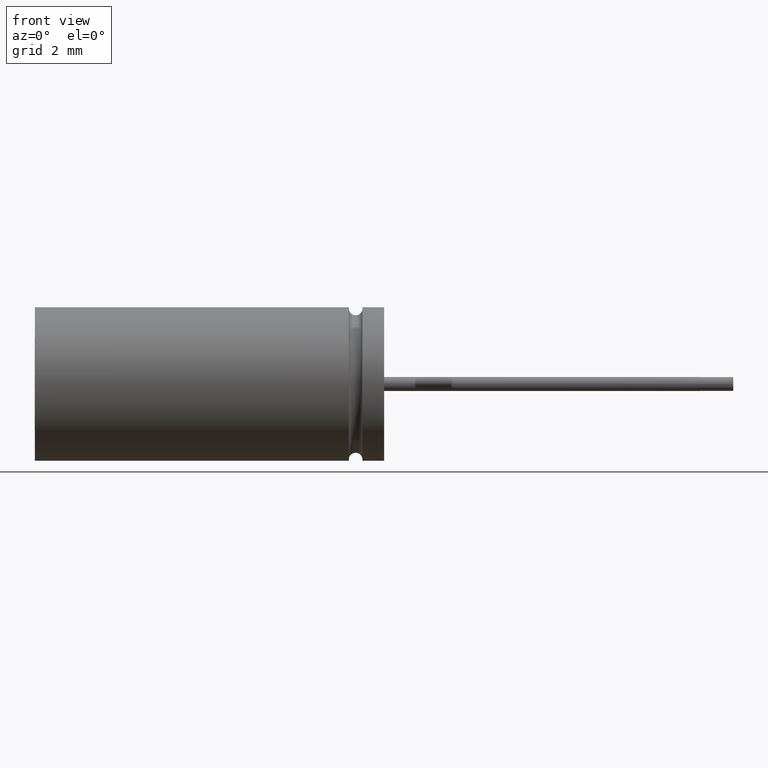
[diagram: clean part render]
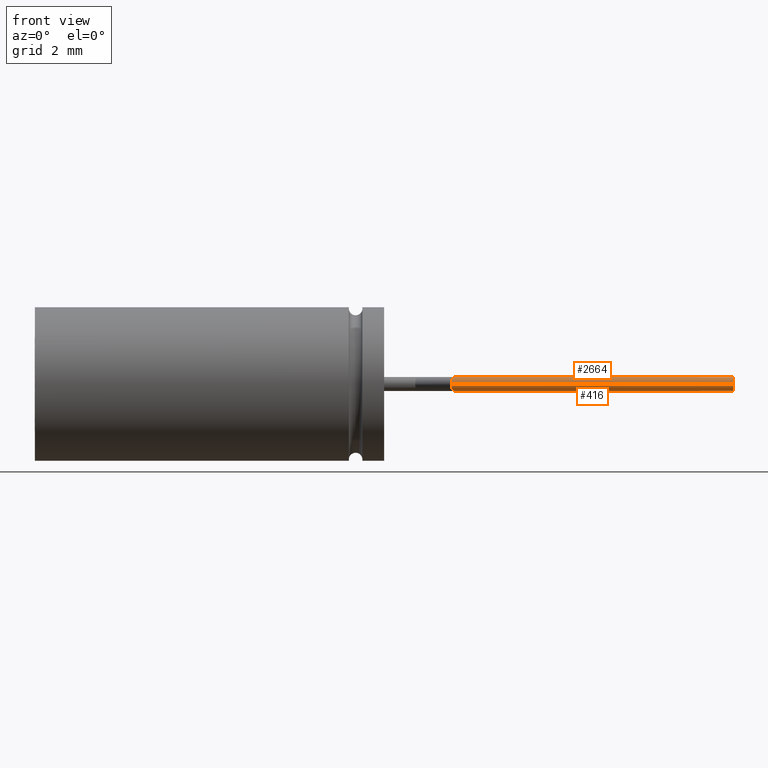
[diagram: same view with one multi-face feature highlighted, each face labeled with its STEP entity id]
A machine part, front view. The highlighted faces form ONE feature: a constant-radius fillet chain: 2 tangent blend faces with common blend radius 0.25 mm. The faces share edges in the B-rep.
Their STEP definitions:
[1] entity #2664 (Cylinder):
#14 = DIRECTION ( 'NONE',  ( 1.000000000000000000, -8.673617379884037900E-017, 0.0000000000000000000 ) ) ;
#53 = EDGE_CURVE ( 'NONE', #1731, #1113, #384, .T. ) ;
#79 = ORIENTED_EDGE ( 'NONE', *, *, #53, .T. ) ;
#138 = DIRECTION ( 'NONE',  ( -1.000000000000000000, 8.673617379884035500E-017, -0.0000000000000000000 ) ) ;
#184 = ORIENTED_EDGE ( 'NONE', *, *, #2711, .T. ) ;
#384 = LINE ( 'NONE', #2011, #1017 ) ;
#428 = DIRECTION ( 'NONE',  ( 1.000000000000000000, -8.673617379884037900E-017, 0.0000000000000000000 ) ) ;
#483 = DIRECTION ( 'NONE',  ( 0.0000000000000000000, 1.000000000000000000, 0.0000000000000000000 ) ) ;
#584 = CIRCLE ( 'NONE', #973, 0.2500000000000002200 ) ;
#749 = CARTESIAN_POINT ( 'NONE',  ( 25.00000000000000000, -2.750000000000000900, 3.061616997868385500E-017 ) ) ;
#782 = CARTESIAN_POINT ( 'NONE',  ( 14.91496951332858200, -2.750000000000000000, 3.061616997868382400E-017 ) ) ;
#838 = CARTESIAN_POINT ( 'NONE',  ( 15.08503048667141900, -2.249999999999999600, 0.0000000000000000000 ) ) ;
#855 = CARTESIAN_POINT ( 'NONE',  ( 25.00000000000000000, -2.250000000000000400, 0.0000000000000000000 ) ) ;
#868 = EDGE_LOOP ( 'NONE', ( #184, #79, #1421, #3682 ) ) ;
#881 = EDGE_CURVE ( 'NONE', #2224, #3134, #1490, .T. ) ;
#973 = AXIS2_PLACEMENT_3D ( 'NONE', #2074, #138, #2116 ) ;
#1017 = VECTOR ( 'NONE', #2894, 1000.000000000000000 ) ;
#1113 = VERTEX_POINT ( 'NONE', #749 ) ;
#1421 = ORIENTED_EDGE ( 'NONE', *, *, #2892, .T. ) ;
#1490 = LINE ( 'NONE', #3410, #3010 ) ;
#1629 = AXIS2_PLACEMENT_3D ( 'NONE', #2119, #428, #483 ) ;
#1731 = VERTEX_POINT ( 'NONE', #2309 ) ;
#2011 = CARTESIAN_POINT ( 'NONE',  ( 15.00000000000000200, -2.750000000000000000, 3.061616997868382400E-017 ) ) ;
#2074 = CARTESIAN_POINT ( 'NONE',  ( 25.00000000000000000, -2.500000000000000400, 0.0000000000000000000 ) ) ;
#2116 = DIRECTION ( 'NONE',  ( 0.0000000000000000000, 1.000000000000000000, 0.0000000000000000000 ) ) ;
#2119 = CARTESIAN_POINT ( 'NONE',  ( 15.00000000000000200, -2.499999999999999600, 0.0000000000000000000 ) ) ;
#2200 = CARTESIAN_POINT ( 'NONE',  ( 15.08503048667141900, -2.249999999999999600, 0.0000000000000000000 ) ) ;
#2224 = VERTEX_POINT ( 'NONE', #838 ) ;
#2309 = CARTESIAN_POINT ( 'NONE',  ( 14.91496951332858200, -2.750000000000000000, 3.061616997868382400E-017 ) ) ;
#2423 = FACE_OUTER_BOUND ( 'NONE', #868, .T. ) ;
#2498 = CARTESIAN_POINT ( 'NONE',  ( 15.08503048667142100, -2.249999999999999600, 0.5000000000000000000 ) ) ;
#2538 =( BOUNDED_CURVE ( )  B_SPLINE_CURVE ( 3, ( #2200, #2498, #3645, #782 ),
 .UNSPECIFIED., .F., .T. ) 
 B_SPLINE_CURVE_WITH_KNOTS ( ( 4, 4 ),
 ( 3.141592653589793100, 6.283185307179586200 ),
 .UNSPECIFIED. ) 
 CURVE ( )  GEOMETRIC_REPRESENTATION_ITEM ( )  RATIONAL_B_SPLINE_CURVE ( ( 1.000000000000000000, 0.3333333333333333700, 0.3333333333333333700, 1.000000000000000000 ) ) 
 REPRESENTATION_ITEM ( '' )  );
#2664 = ADVANCED_FACE ( 'NONE', ( #2423 ), #2792, .T. ) ;
#2711 = EDGE_CURVE ( 'NONE', #2224, #1731, #2538, .T. ) ;
#2792 = CYLINDRICAL_SURFACE ( 'NONE', #1629, 0.2500000000000002200 ) ;
#2892 = EDGE_CURVE ( 'NONE', #1113, #3134, #584, .T. ) ;
#2894 = DIRECTION ( 'NONE',  ( 1.000000000000000000, -8.673617379884037900E-017, 0.0000000000000000000 ) ) ;
#3010 = VECTOR ( 'NONE', #14, 1000.000000000000000 ) ;
#3134 = VERTEX_POINT ( 'NONE', #855 ) ;
#3410 = CARTESIAN_POINT ( 'NONE',  ( 15.00000000000000200, -2.249999999999999600, 0.0000000000000000000 ) ) ;
#3645 = CARTESIAN_POINT ( 'NONE',  ( 14.91496951332858200, -2.750000000000000000, 0.5000000000000000000 ) ) ;
#3682 = ORIENTED_EDGE ( 'NONE', *, *, #881, .F. ) ;
[2] entity #416 (Cylinder):
#14 = DIRECTION ( 'NONE',  ( 1.000000000000000000, -8.673617379884037900E-017, 0.0000000000000000000 ) ) ;
#53 = EDGE_CURVE ( 'NONE', #1731, #1113, #384, .T. ) ;
#384 = LINE ( 'NONE', #2011, #1017 ) ;
#391 = DIRECTION ( 'NONE',  ( 0.0000000000000000000, 1.000000000000000000, 0.0000000000000000000 ) ) ;
#416 = ADVANCED_FACE ( 'NONE', ( #1449 ), #2963, .T. ) ;
#496 = ORIENTED_EDGE ( 'NONE', *, *, #1668, .T. ) ;
#505 = AXIS2_PLACEMENT_3D ( 'NONE', #3271, #1574, #391 ) ;
#547 = AXIS2_PLACEMENT_3D ( 'NONE', #1038, #3129, #578 ) ;
#578 = DIRECTION ( 'NONE',  ( 0.0000000000000000000, 1.000000000000000000, 0.0000000000000000000 ) ) ;
#688 = CARTESIAN_POINT ( 'NONE',  ( 15.08503048667141900, -2.249999999999999600, 0.0000000000000000000 ) ) ;
#749 = CARTESIAN_POINT ( 'NONE',  ( 25.00000000000000000, -2.750000000000000900, 3.061616997868385500E-017 ) ) ;
#838 = CARTESIAN_POINT ( 'NONE',  ( 15.08503048667141900, -2.249999999999999600, 0.0000000000000000000 ) ) ;
#855 = CARTESIAN_POINT ( 'NONE',  ( 25.00000000000000000, -2.250000000000000400, 0.0000000000000000000 ) ) ;
#881 = EDGE_CURVE ( 'NONE', #2224, #3134, #1490, .T. ) ;
#1017 = VECTOR ( 'NONE', #2894, 1000.000000000000000 ) ;
#1038 = CARTESIAN_POINT ( 'NONE',  ( 25.00000000000000000, -2.500000000000000400, 0.0000000000000000000 ) ) ;
#1099 = EDGE_LOOP ( 'NONE', ( #3029, #1384, #1965, #496 ) ) ;
#1113 = VERTEX_POINT ( 'NONE', #749 ) ;
#1158 = CIRCLE ( 'NONE', #547, 0.2500000000000002200 ) ;
#1384 = ORIENTED_EDGE ( 'NONE', *, *, #2508, .T. ) ;
#1449 = FACE_OUTER_BOUND ( 'NONE', #1099, .T. ) ;
#1490 = LINE ( 'NONE', #3410, #3010 ) ;
#1574 = DIRECTION ( 'NONE',  ( 1.000000000000000000, -8.673617379884037900E-017, 0.0000000000000000000 ) ) ;
#1664 =( BOUNDED_CURVE ( )  B_SPLINE_CURVE ( 3, ( #2335, #2094, #2947, #688 ),
 .UNSPECIFIED., .F., .F. ) 
 B_SPLINE_CURVE_WITH_KNOTS ( ( 4, 4 ),
 ( 0.0000000000000000000, 3.141592653589793100 ),
 .UNSPECIFIED. ) 
 CURVE ( )  GEOMETRIC_REPRESENTATION_ITEM ( )  RATIONAL_B_SPLINE_CURVE ( ( 1.000000000000000000, 0.3333333333333333700, 0.3333333333333333700, 1.000000000000000000 ) ) 
 REPRESENTATION_ITEM ( '' )  );
#1668 = EDGE_CURVE ( 'NONE', #3134, #1113, #1158, .T. ) ;
#1731 = VERTEX_POINT ( 'NONE', #2309 ) ;
#1965 = ORIENTED_EDGE ( 'NONE', *, *, #881, .T. ) ;
#2011 = CARTESIAN_POINT ( 'NONE',  ( 15.00000000000000200, -2.750000000000000000, 3.061616997868382400E-017 ) ) ;
#2094 = CARTESIAN_POINT ( 'NONE',  ( 14.91496951332858200, -2.750000000000000000, -0.5000000000000000000 ) ) ;
#2224 = VERTEX_POINT ( 'NONE', #838 ) ;
#2309 = CARTESIAN_POINT ( 'NONE',  ( 14.91496951332858200, -2.750000000000000000, 3.061616997868382400E-017 ) ) ;
#2335 = CARTESIAN_POINT ( 'NONE',  ( 14.91496951332858200, -2.750000000000000000, 3.061616997868382400E-017 ) ) ;
#2508 = EDGE_CURVE ( 'NONE', #1731, #2224, #1664, .T. ) ;
#2894 = DIRECTION ( 'NONE',  ( 1.000000000000000000, -8.673617379884037900E-017, 0.0000000000000000000 ) ) ;
#2947 = CARTESIAN_POINT ( 'NONE',  ( 15.08503048667142100, -2.249999999999999600, -0.5000000000000000000 ) ) ;
#2963 = CYLINDRICAL_SURFACE ( 'NONE', #505, 0.2500000000000002200 ) ;
#3010 = VECTOR ( 'NONE', #14, 1000.000000000000000 ) ;
#3029 = ORIENTED_EDGE ( 'NONE', *, *, #53, .F. ) ;
#3129 = DIRECTION ( 'NONE',  ( -1.000000000000000000, 8.673617379884035500E-017, -0.0000000000000000000 ) ) ;
#3134 = VERTEX_POINT ( 'NONE', #855 ) ;
#3271 = CARTESIAN_POINT ( 'NONE',  ( 15.00000000000000200, -2.499999999999999600, 0.0000000000000000000 ) ) ;
#3410 = CARTESIAN_POINT ( 'NONE',  ( 15.00000000000000200, -2.249999999999999600, 0.0000000000000000000 ) ) ;